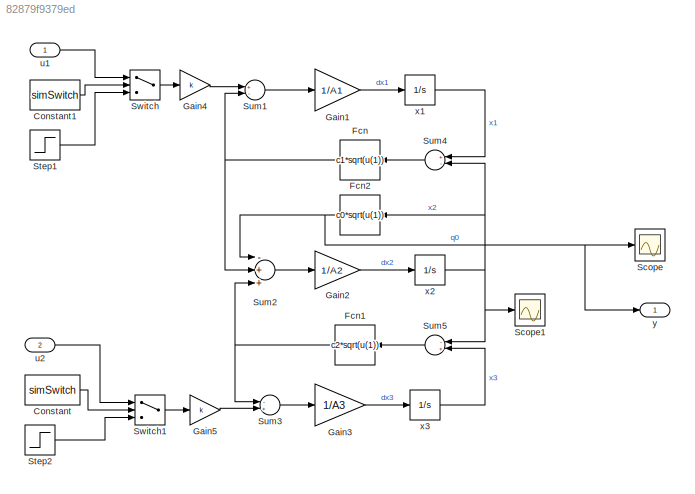
MODEL slx_82879f9379ed
KIND model
CONFIG AbsTol = auto
CONFIG EnableMultiTasking = on
CONFIG FixedStep = 0.1
CONFIG MaxStep = auto
CONFIG MinStep = auto
CONFIG RelTol = 1e-3
CONFIG SampleTimeConstraint = Unconstrained
CONFIG Solver = ode4
CONFIG SolverName = ode4
CONFIG StartTime = 0.0
CONFIG StopTime = 5000
BLOCK [Constant] Constant
  Value = simSwitch
BLOCK [Constant] Constant1
  Value = simSwitch
BLOCK [Fcn] Fcn
  Expr = c1*sqrt(u(1))
BLOCK [Fcn] Fcn1
  Expr = c2*sqrt(u(1))
BLOCK [Fcn] Fcn2
  Expr = c0*sqrt(u(1))
BLOCK [Gain] Gain1
  Gain = 1/A1
BLOCK [Gain] Gain2
  Gain = 1/A2
BLOCK [Gain] Gain3
  Gain = 1/A3
BLOCK [Gain] Gain4
  Gain = k
BLOCK [Gain] Gain5
  Gain = k
BLOCK [Scope] Scope
  NumInputPorts = 1
  Ports = [1]
  ScopeSpecificationString = Simulink.scopes.TimeScopeBlockCfg('CurrentConfiguration', extmgr.ConfigurationSet(extmgr.Configuration('Core','General UI',true),extmgr.Configuration('Core','Source UI',true),extmgr.Configuration('Sources','WiredSimulink',true,'DataLoggingSaveFormat','StructureWithTime','DataLoggingLimitDataPoints',true,'DataLoggingDecimation','1','DataLoggingDecimateData',true),extmgr.Configuration('Visuals','Tim...<+1667ch>
BLOCK [Scope] Scope1
  NumInputPorts = 1
  Ports = [1]
  ScopeSpecificationString = Simulink.scopes.TimeScopeBlockCfg('CurrentConfiguration', extmgr.ConfigurationSet(extmgr.Configuration('Core','General UI',true),extmgr.Configuration('Core','Source UI',true),extmgr.Configuration('Sources','WiredSimulink',true,'DataLoggingVariableName','ScopeData1','DataLoggingSaveFormat','StructureWithTime','DataLoggingLimitDataPoints',true,'DataLoggingDecimation','1','DataLoggingDecimateData',tr...<+1706ch>
BLOCK [Step] Step1
  After = u
  Before = u
  SampleTime = 0.1
  Time = 0
BLOCK [Step] Step2
  After = u
  Before = u
  SampleTime = 0.1
  Time = 0
BLOCK [Sum] Sum1
  Inputs = +-
  Ports = [2, 1]
BLOCK [Sum] Sum2
  Inputs = -++
  Ports = [3, 1]
BLOCK [Sum] Sum3
  Inputs = -+
  Ports = [2, 1]
BLOCK [Sum] Sum4
  Inputs = +-
  Ports = [2, 1]
BLOCK [Sum] Sum5
  Inputs = -+
  Ports = [2, 1]
BLOCK [Switch] Switch
BLOCK [Switch] Switch1
BLOCK [Inport] u1
  IconDisplay = Port number
BLOCK [Inport] u2
  IconDisplay = Port number
  Port = 2
BLOCK [Integrator] x1
  InitialCondition = x0(1)
  Ports = [1, 1]
  Priority = 1
BLOCK [Integrator] x2
  InitialCondition = x0(2)
  Ports = [1, 1]
  Priority = 2
BLOCK [Integrator] x3
  InitialCondition = x0(3)
  Ports = [1, 1]
  Priority = 3
BLOCK [Outport] y
  IconDisplay = Port number
LINE Constant1:1 -> Switch:2
LINE Constant:1 -> Switch1:2
NET Fcn1:1 -> Sum2:3, Sum3:1
NET Fcn2:1 -> Scope:1, Sum2:1, y:1
NET Fcn:1 -> Sum1:2, Sum2:2
LINE Gain1:1 -> x1:1
LINE Gain2:1 -> x2:1
LINE Gain3:1 -> x3:1
LINE Gain4:1 -> Sum1:1
LINE Gain5:1 -> Sum3:2
LINE Step1:1 -> Switch:3
LINE Step2:1 -> Switch1:3
LINE Sum1:1 -> Gain1:1
LINE Sum2:1 -> Gain2:1
LINE Sum3:1 -> Gain3:1
LINE Sum4:1 -> Fcn:1
LINE Sum5:1 -> Fcn1:1
LINE Switch1:1 -> Gain5:1
LINE Switch:1 -> Gain4:1
LINE u1:1 -> Switch:1
LINE u2:1 -> Switch1:1
LINE x1:1 -> Sum4:1
NET x2:1 -> Fcn2:1, Scope1:1, Sum4:2, Sum5:1
LINE x3:1 -> Sum5:2
note: NET lines group one-source signal fan-out (src -> all destinations, sorted); 1:1 wires keep LINE
